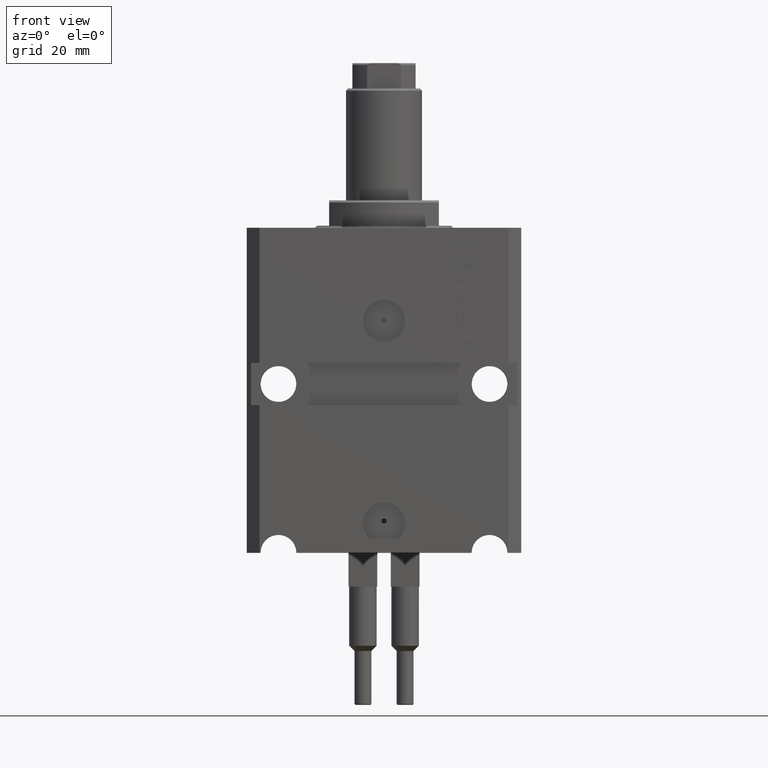
[diagram: clean part render]
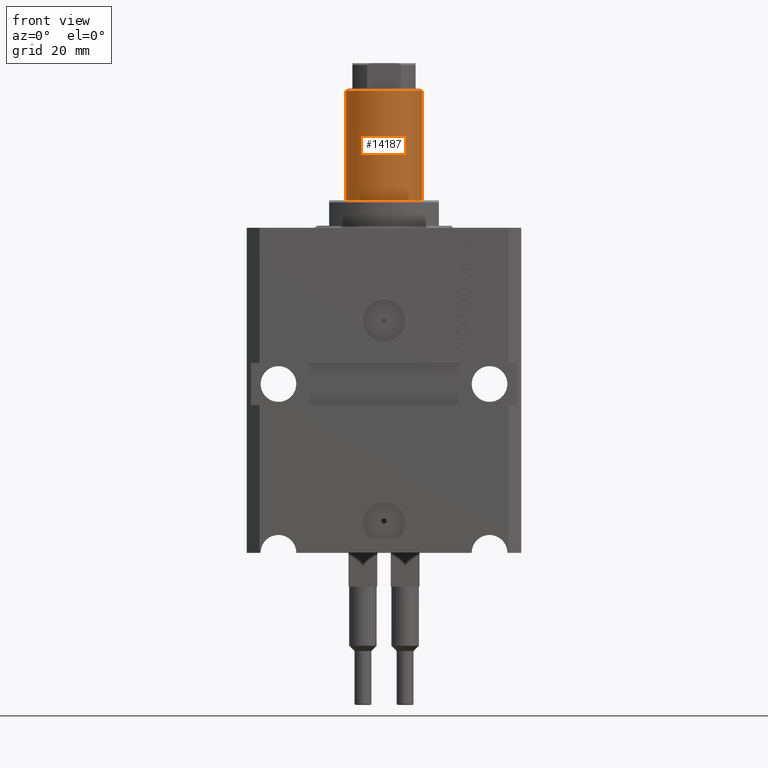
[diagram: same view with one face highlighted and labeled with its STEP entity id]
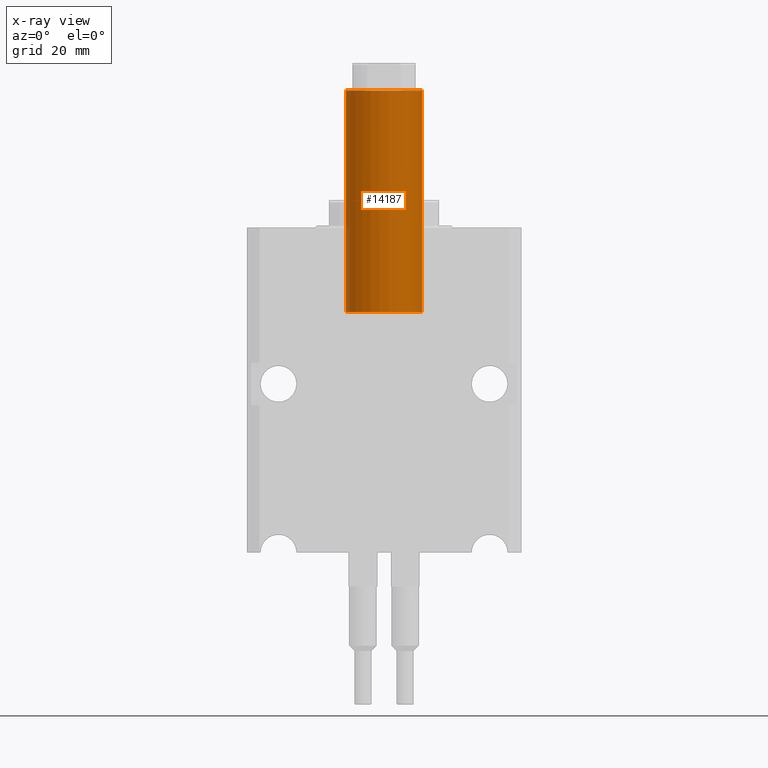
[diagram: x-ray of the same camera — body ghosted, the highlighted face saturated]
A machine part, front view. The second image highlights one B-rep face of the part: STEP entity #14187.
The next image is the same camera in x-ray: the body ghosted, the highlighted face saturated — about 4% of this face is hidden behind the body in this view.
In plain terms, the highlighted cylindrical surface (partial cylindrical patch) has radius 9 mm, axis along (-0, -0, -1).
Its self-contained STEP definition (entity closure, byte-faithful):
#1596 = CARTESIAN_POINT ( 'NONE',  ( 9.000000000000000000, 1.102182119232617714E-15, 78.00000000000000000 ) ) ;
#1602 = CARTESIAN_POINT ( 'NONE',  ( -9.000000000000000000, 0.000000000000000000, 77.49999999999998579 ) ) ;
#4291 = CARTESIAN_POINT ( 'NONE',  ( -9.000000000000000000, 0.000000000000000000, 25.00000000000000000 ) ) ;
#4405 = AXIS2_PLACEMENT_3D ( 'NONE', #23143, #11957, #33024 ) ;
#4426 = DIRECTION ( 'NONE',  ( 1.000000000000000000, 0.000000000000000000, 0.000000000000000000 ) ) ;
#5354 = EDGE_LOOP ( 'NONE', ( #21141, #22707, #18024, #20880 ) ) ;
#5865 = LINE ( 'NONE', #1596, #36945 ) ;
#8078 = CARTESIAN_POINT ( 'NONE',  ( 9.000000000000000000, 1.102182119232617714E-15, 77.49999999999998579 ) ) ;
#11078 = DIRECTION ( 'NONE',  ( 0.000000000000000000, 0.000000000000000000, -1.000000000000000000 ) ) ;
#11957 = DIRECTION ( 'NONE',  ( -0.000000000000000000, -0.000000000000000000, -1.000000000000000000 ) ) ;
#14187 = ADVANCED_FACE ( 'NONE', ( #22476 ), #33466, .T. ) ;
#14655 = VERTEX_POINT ( 'NONE', #44406 ) ;
#16168 = EDGE_CURVE ( 'NONE', #38063, #14655, #24204, .T. ) ;
#16869 = VERTEX_POINT ( 'NONE', #8078 ) ;
#17673 = EDGE_CURVE ( 'NONE', #25540, #38063, #43373, .T. ) ;
#18024 = ORIENTED_EDGE ( 'NONE', *, *, #17673, .T. ) ;
#18398 = CARTESIAN_POINT ( 'NONE',  ( 0.000000000000000000, 0.000000000000000000, 25.00000000000000000 ) ) ;
#19458 = EDGE_CURVE ( 'NONE', #16869, #25540, #35262, .T. ) ;
#19830 = DIRECTION ( 'NONE',  ( -0.000000000000000000, -0.000000000000000000, -1.000000000000000000 ) ) ;
#20880 = ORIENTED_EDGE ( 'NONE', *, *, #16168, .T. ) ;
#21141 = ORIENTED_EDGE ( 'NONE', *, *, #24631, .F. ) ;
#21297 = VECTOR ( 'NONE', #33036, 1000.000000000000000 ) ;
#22476 = FACE_OUTER_BOUND ( 'NONE', #5354, .T. ) ;
#22707 = ORIENTED_EDGE ( 'NONE', *, *, #19458, .T. ) ;
#23143 = CARTESIAN_POINT ( 'NONE',  ( 0.000000000000000000, 0.000000000000000000, 78.00000000000000000 ) ) ;
#24204 = CIRCLE ( 'NONE', #35166, 9.000000000000000000 ) ;
#24631 = EDGE_CURVE ( 'NONE', #16869, #14655, #5865, .T. ) ;
#25540 = VERTEX_POINT ( 'NONE', #1602 ) ;
#25721 = DIRECTION ( 'NONE',  ( 0.000000000000000000, 0.000000000000000000, 1.000000000000000000 ) ) ;
#28711 = AXIS2_PLACEMENT_3D ( 'NONE', #42484, #11078, #28948 ) ;
#28948 = DIRECTION ( 'NONE',  ( 1.000000000000000000, 0.000000000000000000, 0.000000000000000000 ) ) ;
#33024 = DIRECTION ( 'NONE',  ( -1.000000000000000000, 0.000000000000000000, 0.000000000000000000 ) ) ;
#33036 = DIRECTION ( 'NONE',  ( -0.000000000000000000, -0.000000000000000000, -1.000000000000000000 ) ) ;
#33466 = CYLINDRICAL_SURFACE ( 'NONE', #4405, 9.000000000000000000 ) ;
#35166 = AXIS2_PLACEMENT_3D ( 'NONE', #18398, #25721, #4426 ) ;
#35262 = CIRCLE ( 'NONE', #28711, 9.000000000000000000 ) ;
#36251 = CARTESIAN_POINT ( 'NONE',  ( -9.000000000000000000, 0.000000000000000000, 78.00000000000000000 ) ) ;
#36945 = VECTOR ( 'NONE', #19830, 1000.000000000000000 ) ;
#38063 = VERTEX_POINT ( 'NONE', #4291 ) ;
#42484 = CARTESIAN_POINT ( 'NONE',  ( 0.000000000000000000, 0.000000000000000000, 77.49999999999998579 ) ) ;
#43373 = LINE ( 'NONE', #36251, #21297 ) ;
#44406 = CARTESIAN_POINT ( 'NONE',  ( 9.000000000000000000, 1.102182119232617714E-15, 25.00000000000000000 ) ) ;